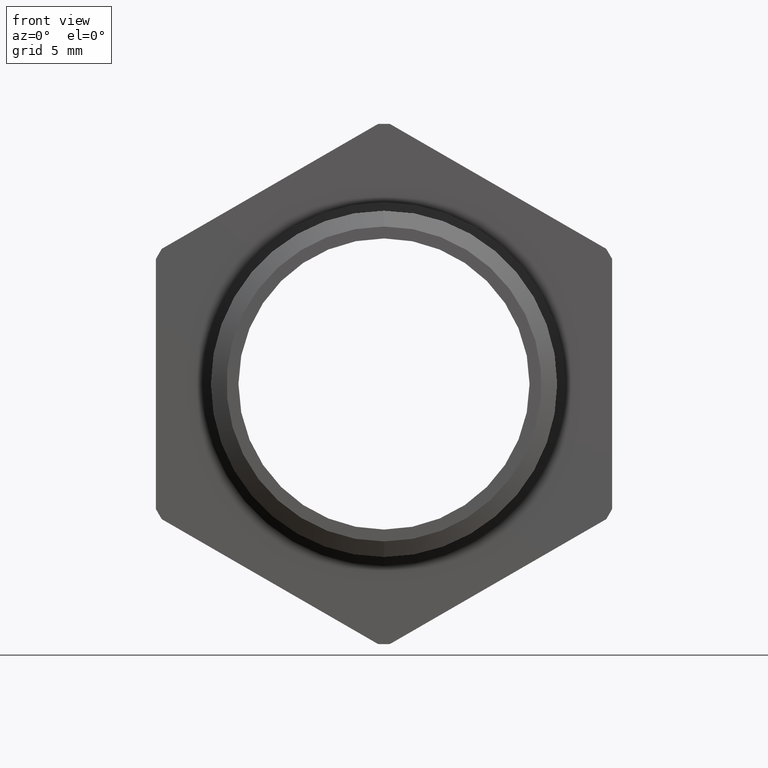
[diagram: clean part render]
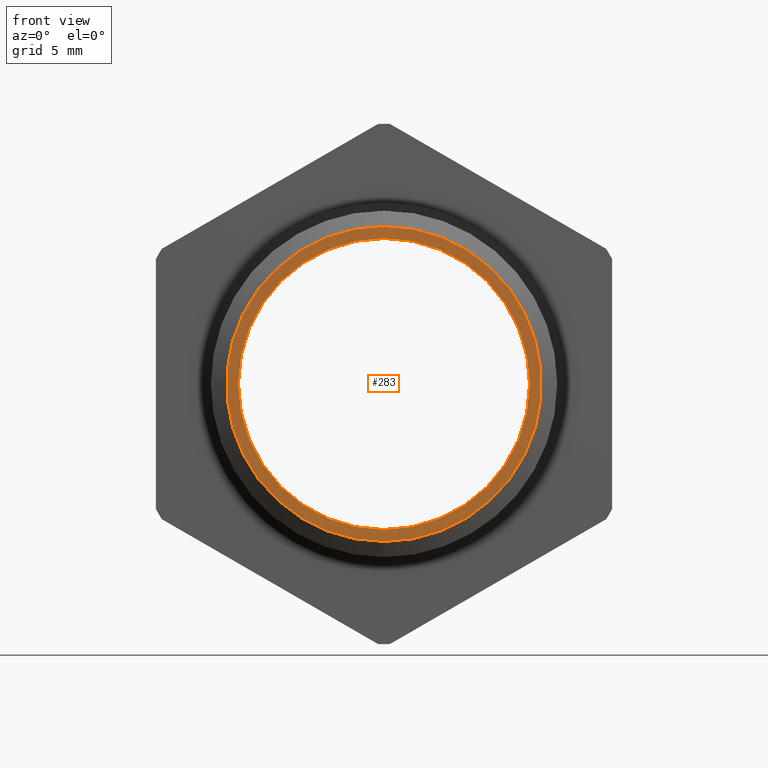
[diagram: same view with one face highlighted and labeled with its STEP entity id]
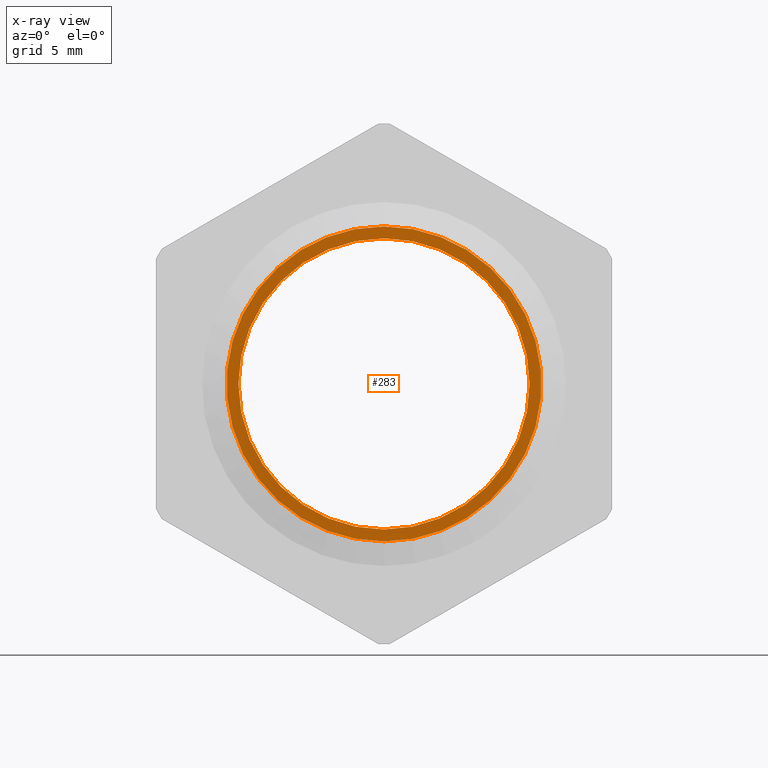
[diagram: x-ray of the same camera — body ghosted, the highlighted face saturated]
A machine part, front view. The second image highlights one B-rep face of the part: STEP entity #283.
The next image is the same camera in x-ray: the body ghosted, the highlighted face saturated — about 0% of this face is hidden behind the body in this view.
In plain terms, the highlighted planar face has unit normal (0, -1, -0).
Its self-contained STEP definition (entity closure, byte-faithful):
#44 = EDGE_CURVE ( 'NONE', #2446, #2443, #957, .T. ) ;
#45 = ORIENTED_EDGE ( 'NONE', *, *, #44, .T. ) ;
#46 = ORIENTED_EDGE ( 'NONE', *, *, #96, .F. ) ;
#48 = ORIENTED_EDGE ( 'NONE', *, *, #2445, .T. ) ;
#49 = EDGE_LOOP ( 'NONE', ( #48, #45 ) ) ;
#96 = EDGE_CURVE ( 'NONE', #100, #97, #994, .T. ) ;
#97 = VERTEX_POINT ( 'NONE', #989 ) ;
#100 = VERTEX_POINT ( 'NONE', #1052 ) ;
#283 = ADVANCED_FACE ( 'NONE', ( #1388, #1387 ), #1386, .T. ) ;
#284 = EDGE_LOOP ( 'NONE', ( #285, #46 ) ) ;
#285 = ORIENTED_EDGE ( 'NONE', *, *, #286, .F. ) ;
#286 = EDGE_CURVE ( 'NONE', #97, #100, #1380, .T. ) ;
#953 = DIRECTION ( 'NONE',  ( 0.0000000000000000000, 0.0000000000000000000, -1.000000000000000000 ) ) ;
#954 = DIRECTION ( 'NONE',  ( -0.0000000000000000000, -1.000000000000000000, -0.0000000000000000000 ) ) ;
#955 = CARTESIAN_POINT ( 'NONE',  ( 0.0000000000000000000, -0.002445109417052044800, 0.0000000000000000000 ) ) ;
#956 = AXIS2_PLACEMENT_3D ( 'NONE', #955, #954, #953 ) ;
#957 = CIRCLE ( 'NONE', #956, 0.2726287765502969400 ) ;
#989 = CARTESIAN_POINT ( 'NONE',  ( 0.0000000000000000000, -0.002445109417052043500, -0.2520000000000000000 ) ) ;
#990 = DIRECTION ( 'NONE',  ( 0.0000000000000000000, 0.0000000000000000000, -1.000000000000000000 ) ) ;
#991 = DIRECTION ( 'NONE',  ( -0.0000000000000000000, -1.000000000000000000, -0.0000000000000000000 ) ) ;
#992 = CARTESIAN_POINT ( 'NONE',  ( 0.0000000000000000000, -0.002445109417052043500, 0.0000000000000000000 ) ) ;
#993 = AXIS2_PLACEMENT_3D ( 'NONE', #992, #991, #990 ) ;
#994 = CIRCLE ( 'NONE', #993, 0.2520000000000000000 ) ;
#1052 = CARTESIAN_POINT ( 'NONE',  ( 3.086109933851330000E-017, -0.002445109417052043500, 0.2520000000000000000 ) ) ;
#1377 = DIRECTION ( 'NONE',  ( 0.0000000000000000000, 0.0000000000000000000, -1.000000000000000000 ) ) ;
#1378 = DIRECTION ( 'NONE',  ( -0.0000000000000000000, -1.000000000000000000, -0.0000000000000000000 ) ) ;
#1379 = AXIS2_PLACEMENT_3D ( 'NONE', #1384, #1378, #1377 ) ;
#1380 = CIRCLE ( 'NONE', #1379, 0.2520000000000000000 ) ;
#1381 = DIRECTION ( 'NONE',  ( 0.0000000000000000000, 0.0000000000000000000, -1.000000000000000000 ) ) ;
#1382 = DIRECTION ( 'NONE',  ( 0.0000000000000000000, -1.000000000000000000, -0.0000000000000000000 ) ) ;
#1383 = AXIS2_PLACEMENT_3D ( 'NONE', #1385, #1382, #1381 ) ;
#1384 = CARTESIAN_POINT ( 'NONE',  ( 0.0000000000000000000, -0.002445109417052043500, 0.0000000000000000000 ) ) ;
#1385 = CARTESIAN_POINT ( 'NONE',  ( 0.2520000000000000000, -0.002445109417052043500, 0.0000000000000000000 ) ) ;
#1386 = PLANE ( 'NONE',  #1383 ) ;
#1387 = FACE_OUTER_BOUND ( 'NONE', #49, .T. ) ;
#1388 = FACE_BOUND ( 'NONE', #284, .T. ) ;
#2315 = CARTESIAN_POINT ( 'NONE',  ( 3.338739585577800900E-017, -0.002445109417052044800, 0.2726287765502969400 ) ) ;
#2316 = DIRECTION ( 'NONE',  ( 0.0000000000000000000, 0.0000000000000000000, -1.000000000000000000 ) ) ;
#2317 = DIRECTION ( 'NONE',  ( -0.0000000000000000000, -1.000000000000000000, -0.0000000000000000000 ) ) ;
#2318 = CARTESIAN_POINT ( 'NONE',  ( 0.0000000000000000000, -0.002445109417052044800, 0.0000000000000000000 ) ) ;
#2319 = AXIS2_PLACEMENT_3D ( 'NONE', #2318, #2317, #2316 ) ;
#2320 = CIRCLE ( 'NONE', #2319, 0.2726287765502969400 ) ;
#2321 = CARTESIAN_POINT ( 'NONE',  ( 0.0000000000000000000, -0.002445109417052044800, -0.2726287765502969400 ) ) ;
#2443 = VERTEX_POINT ( 'NONE', #2321 ) ;
#2445 = EDGE_CURVE ( 'NONE', #2443, #2446, #2320, .T. ) ;
#2446 = VERTEX_POINT ( 'NONE', #2315 ) ;